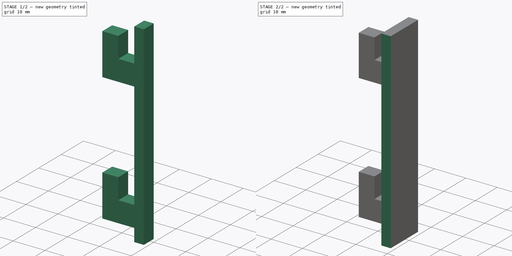
[diagram: build sequence overview — one tinted view per stage of 2, left to right]
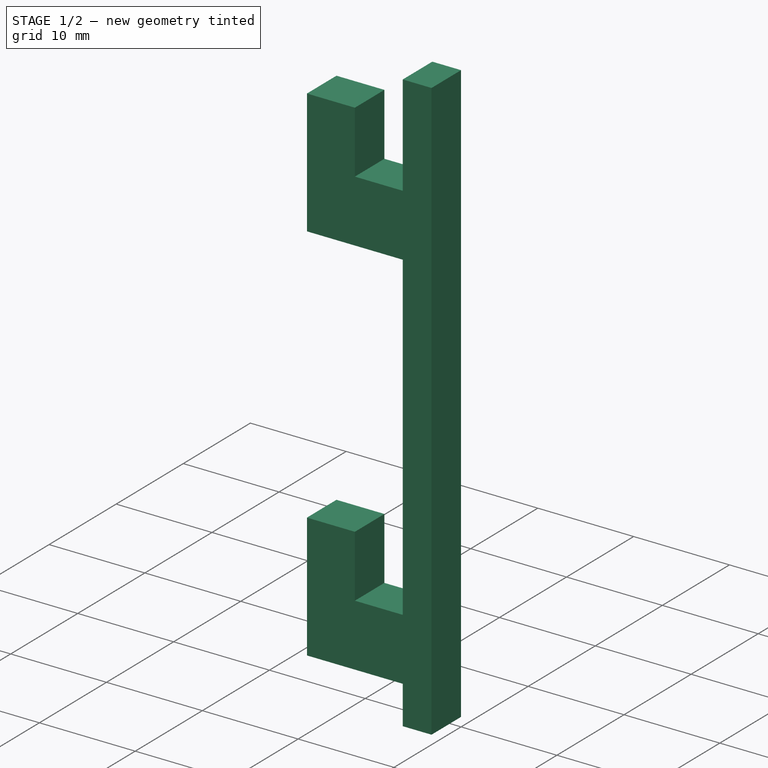
[diagram: stage 1 of 2 — iso view after this stage's code; geometry added in this stage tinted green]
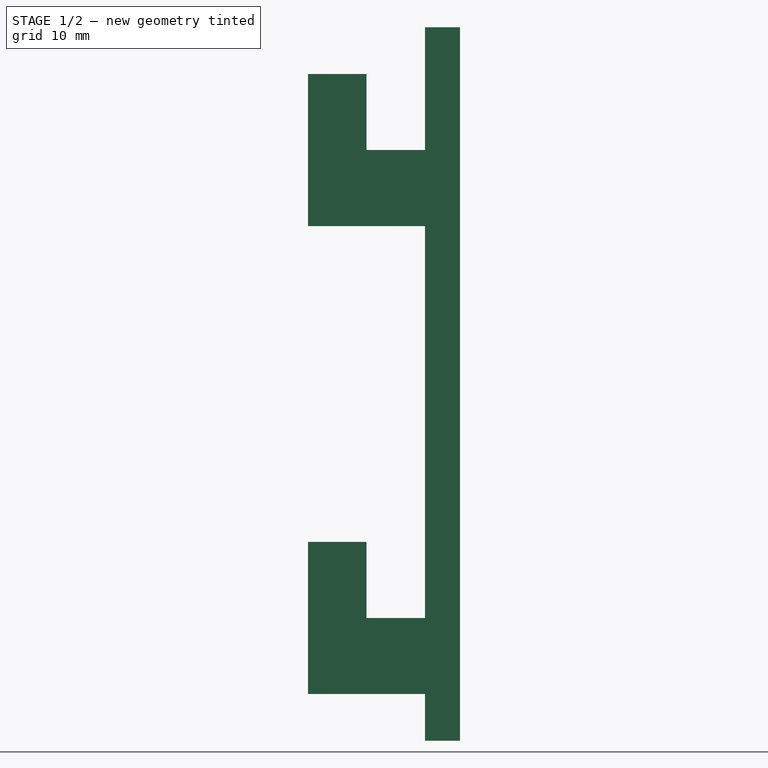
[diagram: stage 1 of 2 — front view after this stage's code; geometry added in this stage tinted green]
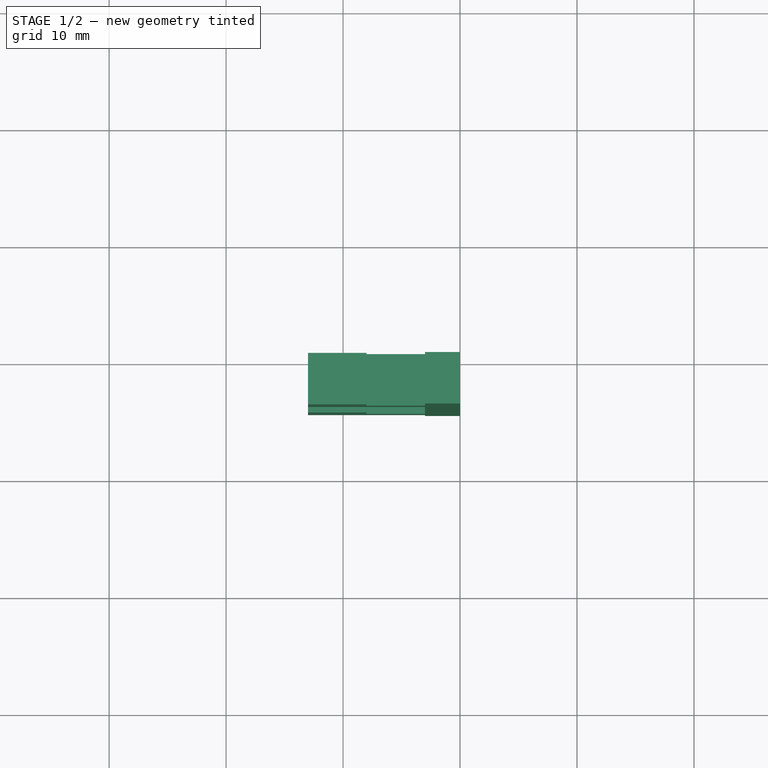
[diagram: stage 1 of 2 — top view after this stage's code; geometry added in this stage tinted green]
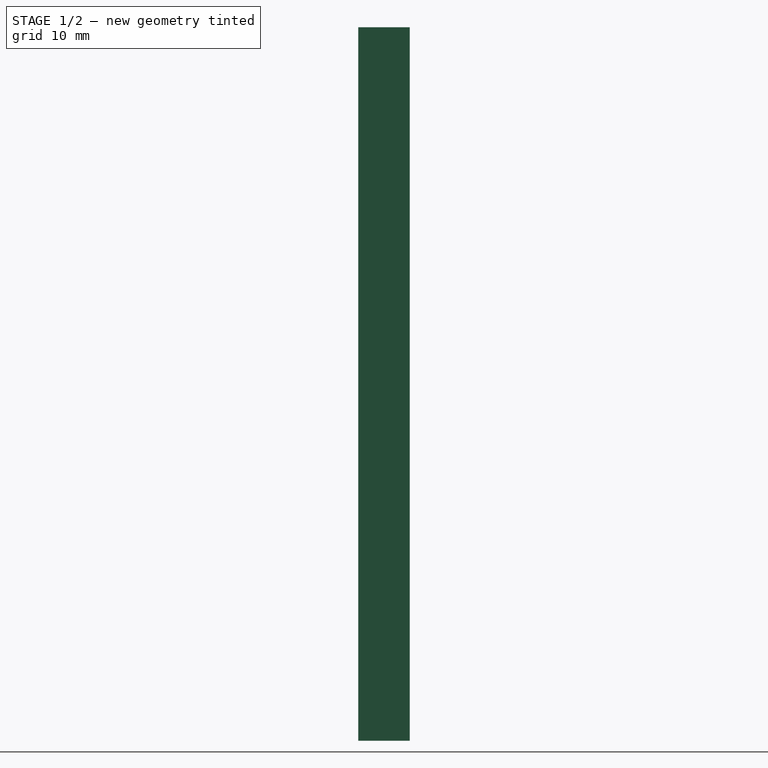
[diagram: stage 1 of 2 — right view after this stage's code; geometry added in this stage tinted green]
FCSTD DOCUMENT  (FreeCAD 1.0R39109 (Git))
Label: 01_Wrench_Holder
License: All rights reserved
LicenseURL: https://en.wikipedia.org/wiki/All_rights_reserved
objects: Sketcher::SketchObject×3, PartDesign::Pad×2, PartDesign::Body×1
note: 13 computed .brp shape members not serialized (recipe doc carries the construction recipe); baked Part::Feature solids carry a one-line shape summary decoded from their .brp

FEATURE [Sketcher::SketchObject] Sketch
  ArcFitTolerance = 1e-06
  AttachmentSupport = -> [XZ_Plane]
  FullyConstrained = true
  MakeInternals = false
  MapMode = 5
  Placement = pos=(0,0,0) rot=(1,0,0;1.5708rad)
  sketch-geometry (16):
    g0: LineSegment StartX=-3 StartY=-30.5 StartZ=0 EndX=-3 EndY=-26.5 EndZ=0
    g1: LineSegment StartX=-3 StartY=-26.5 StartZ=0 EndX=-13 EndY=-26.5 EndZ=0
    g2: LineSegment StartX=-13 StartY=-26.5 StartZ=0 EndX=-13 EndY=-13.5 EndZ=0
    g3: LineSegment StartX=-13 StartY=-13.5 StartZ=0 EndX=-8 EndY=-13.5 EndZ=0
    g4: LineSegment StartX=-8 StartY=-13.5 StartZ=0 EndX=-8 EndY=-20 EndZ=0
    g5: LineSegment StartX=-8 StartY=-20 StartZ=0 EndX=-3 EndY=-20 EndZ=0
    g6: LineSegment StartX=-3 StartY=-20 StartZ=0 EndX=-3 EndY=13.5 EndZ=0
    g7: LineSegment StartX=-3 StartY=13.5 StartZ=0 EndX=-13 EndY=13.5 EndZ=0
    g8: LineSegment StartX=-13 StartY=13.5 StartZ=0 EndX=-13 EndY=26.5 EndZ=0
    g9: LineSegment StartX=-13 StartY=26.5 StartZ=0 EndX=-8 EndY=26.5 EndZ=0
    g10: LineSegment StartX=-8 StartY=26.5 StartZ=0 EndX=-8 EndY=20 EndZ=0
    g11: LineSegment StartX=-8 StartY=20 StartZ=0 EndX=-3 EndY=20 EndZ=0
    g12: LineSegment StartX=-3 StartY=20 StartZ=0 EndX=-3 EndY=30.5 EndZ=0
    g13: LineSegment StartX=-3 StartY=30.5 StartZ=0 EndX=0 EndY=30.5 EndZ=0
    g14: LineSegment StartX=0 StartY=30.5 StartZ=0 EndX=0 EndY=-30.5 EndZ=0
    g15: LineSegment StartX=0 StartY=-30.5 StartZ=0 EndX=-3 EndY=-30.5 EndZ=0
  constraints (48):
    c: Vertical(g0)
    c: Coincident(g0,g1)
    c: Horizontal(g1)
    c: Coincident(g1,g2)
    c: Vertical(g2)
    c: Coincident(g2,g3)
    c: Horizontal(g3)
    c: Coincident(g3,g4)
    c: Coincident(g4,g5)
    c: Coincident(g5,g6)
    c: Vertical(g6)
    c: Coincident(g6,g7)
    c: Horizontal(g7)
    c: Coincident(g7,g8)
    c: Vertical(g8)
    c: Coincident(g8,g9)
    c: Coincident(g9,g10)
    c: Vertical(g10)
    c: Coincident(g10,g11)
    c: Coincident(g11,g12)
    c: Vertical(g12)
    c: Coincident(g12,g13)
    c: Horizontal(g13)
    c: Coincident(g13,g14)
    c: Vertical(g14)
    c: Coincident(g14,g15)
    c: Coincident(g15,g0)
    c: Horizontal(g9)
    c: Horizontal(g11)
    c: Horizontal(g5)
    c: Horizontal(g15)
    c: Vertical(g4)
    c: Distance(g15) = 3
    c: Distance(g13) = 3
    c: Distance(g1) = 10
    c: Distance(g2) = 13
    c: Distance(g3) = 5
    c: Distance(g5) = 5
    c: Distance(g4) = 6.5
    c: Distance(g6) = 33.5
    c: Distance(g7) = 10
    c: Distance(g8) = 13
    c: Distance(g9) = 5
    c: Distance(g10) = 6.5
    c: Distance(g12) = 10.5
    c: Distance(g0) = 4
    c: DistanceY(g14,g-1) = 30.5
    c: DistanceX(g14,g-1) = 0
FEATURE [PartDesign::Pad] Pad
  Direction = (0,-1,2e-16)
  Length = 4.4
  Length2 = 10
  Placement = pos=(0,0,0) rot=(1,0,0;1.5708rad)
  Profile = -> Sketch
  ReferenceAxis = -> Sketch [N_Axis]
  Refine = true
  Suppressed = false
  Type = 0
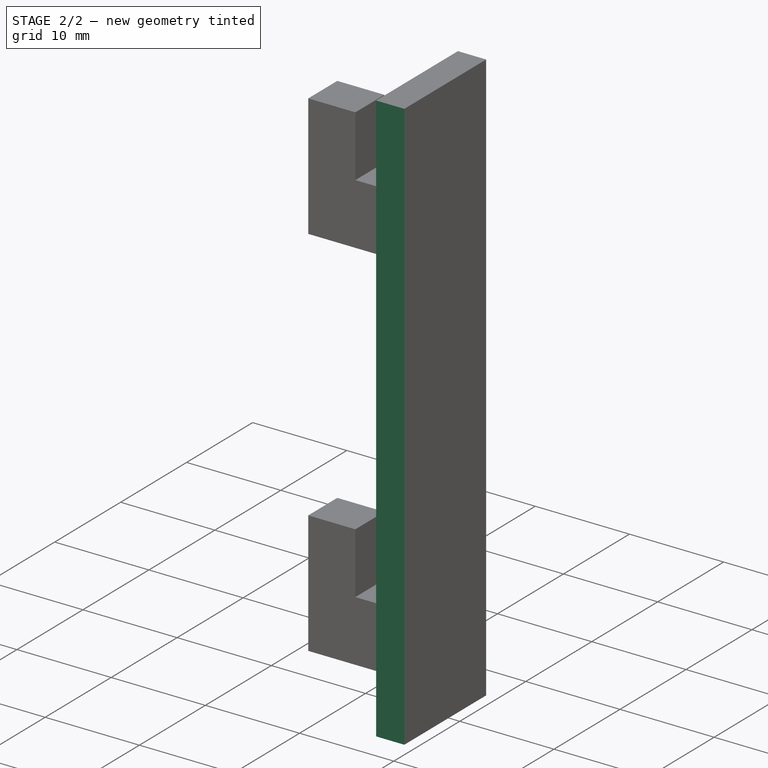
[diagram: stage 2 of 2 — iso view after this stage's code; geometry added in this stage tinted green]
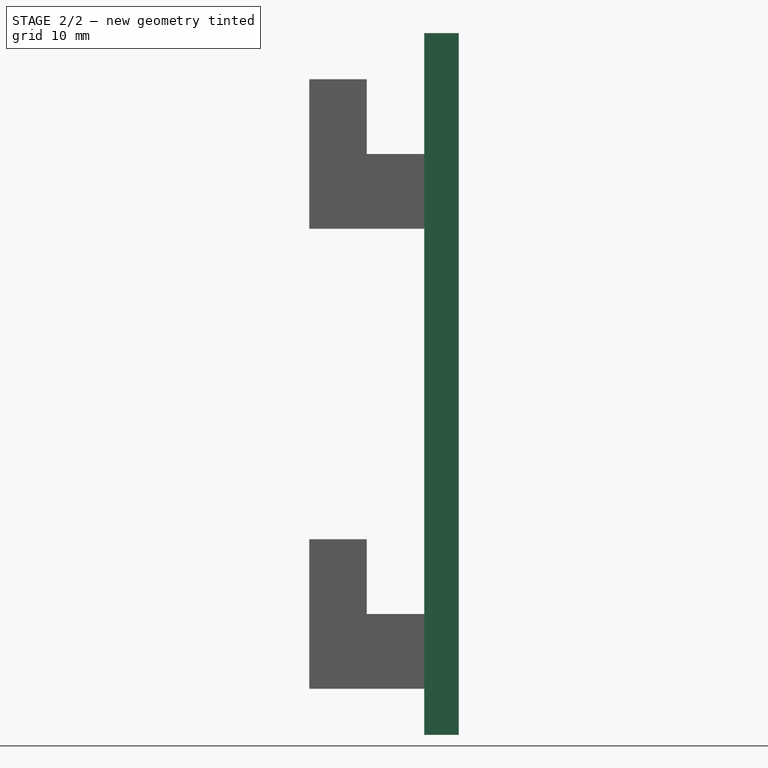
[diagram: stage 2 of 2 — front view after this stage's code; geometry added in this stage tinted green]
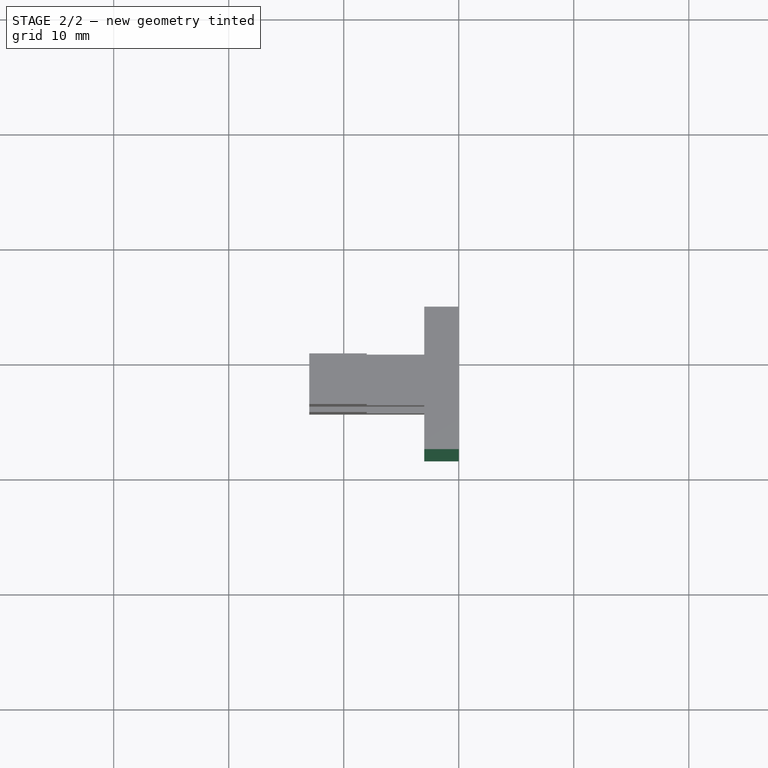
[diagram: stage 2 of 2 — top view after this stage's code; geometry added in this stage tinted green]
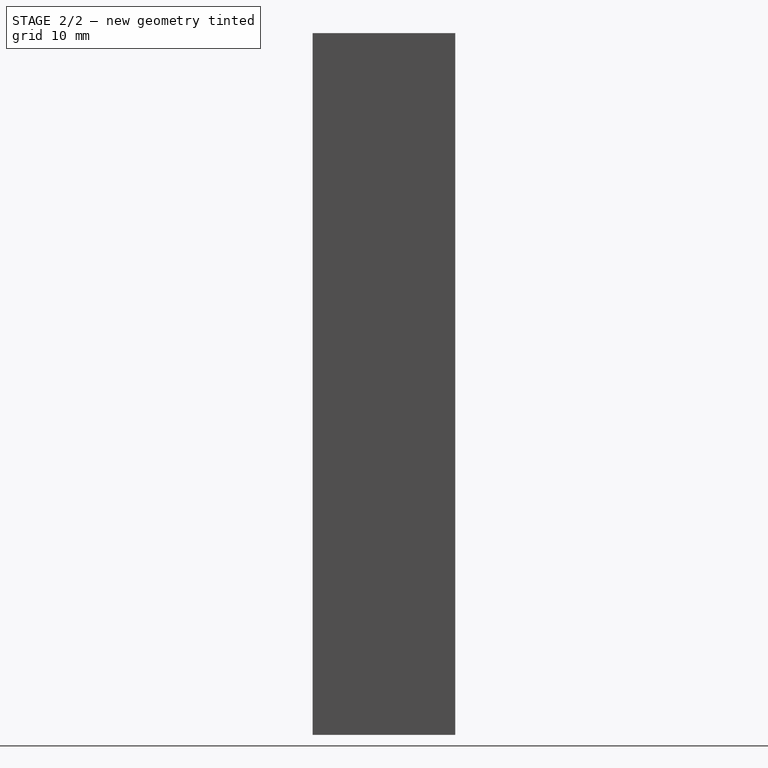
[diagram: stage 2 of 2 — right view after this stage's code; geometry added in this stage tinted green]
FEATURE [Sketcher::SketchObject] Sketch001
  ArcFitTolerance = 1e-06
  AttachmentSupport = -> [Pad]
  FullyConstrained = true
  MakeInternals = false
  MapMode = 5
  Placement = pos=(0,-4.4,0) rot=(1,0,0;1.5708rad)
  sketch-geometry (4):
    g0: LineSegment StartX=-3 StartY=30.5 StartZ=0 EndX=-3 EndY=-30.5 EndZ=0
    g1: LineSegment StartX=-3 StartY=-30.5 StartZ=0 EndX=0 EndY=-30.5 EndZ=0
    g2: LineSegment StartX=0 StartY=-30.5 StartZ=0 EndX=0 EndY=30.5 EndZ=0
    g3: LineSegment StartX=0 StartY=30.5 StartZ=0 EndX=-3 EndY=30.5 EndZ=0
  constraints (12):
    c: Coincident(g0,g1)
    c: Coincident(g1,g2)
    c: Coincident(g2,g3)
    c: Coincident(g3,g0)
    c: Vertical(g0)
    c: Vertical(g2)
    c: Horizontal(g1)
    c: Horizontal(g3)
    c: Distance(g0,g2) = 3
    c: Distance(g1,g3) = 61
    c: DistanceY(g1,g-1) = 30.5
    c: DistanceX(g1,g-1) = 0
FEATURE [PartDesign::Pad] Pad001
  BaseFeature = -> Pad
  Direction = (0,-1,2e-16)
  Length = 4
  Length2 = 8.4
  Placement = pos=(0,0,0) rot=(1,0,0;1.5708rad)
  Profile = -> Sketch001
  ReferenceAxis = -> Sketch001 [N_Axis]
  Refine = true
  Suppressed = false
  Type = 4
FEATURE [Sketcher::SketchObject] Sketch002
  ArcFitTolerance = 1e-06
  AttachmentSupport = -> [Pad001]
  FullyConstrained = true
  MakeInternals = false
  MapMode = 5
  Placement = pos=(-13,0,0) rot=(0.707107,0,-0.707107;3.14159rad)
FEATURE [PartDesign::Body] Body
  AllowCompound = false
  Group = -> [Sketch,Pad,Sketch001,Pad001,Sketch002]
  Origin = -> Origin
  Tip = -> Pad001
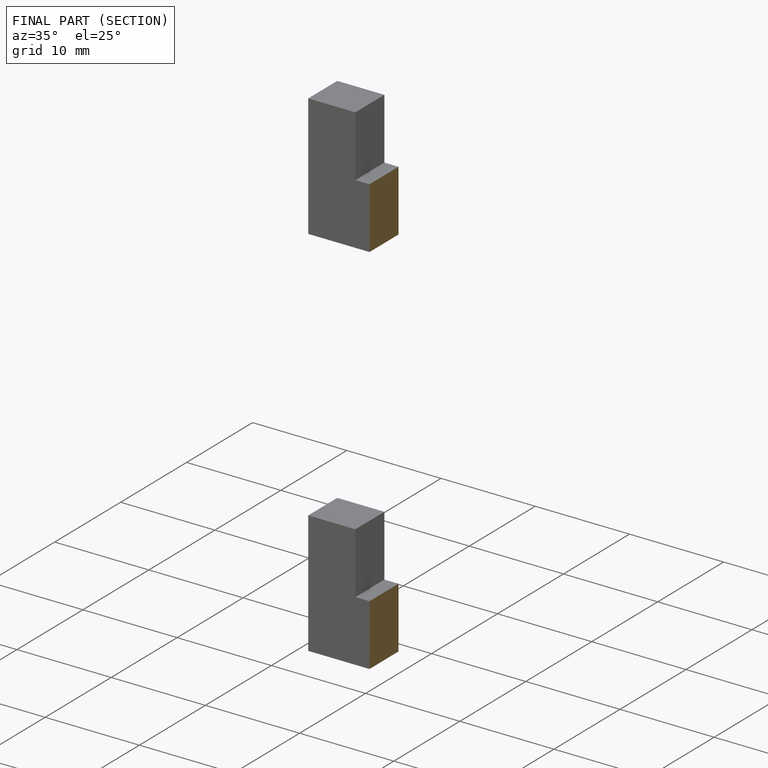
[diagram: finished part — half-section view (interior)]
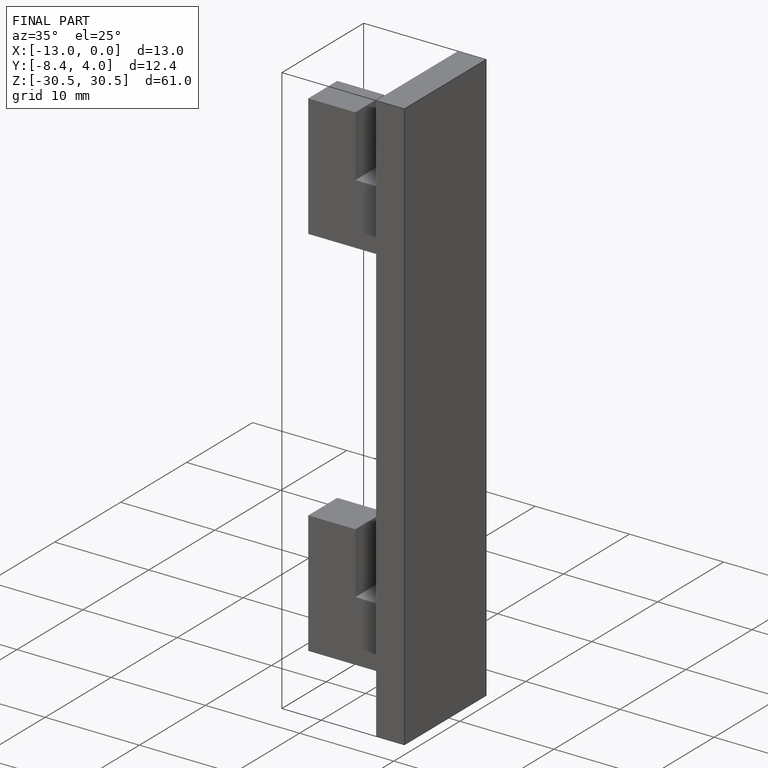
[diagram: finished part — iso view with bounding-box wireframe]
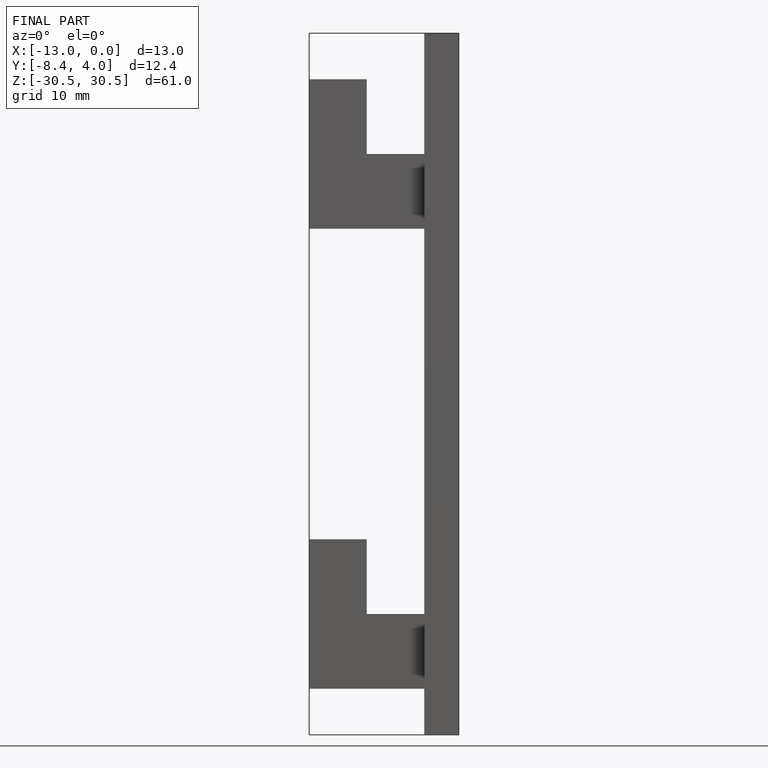
[diagram: finished part — front view with bounding-box wireframe]
